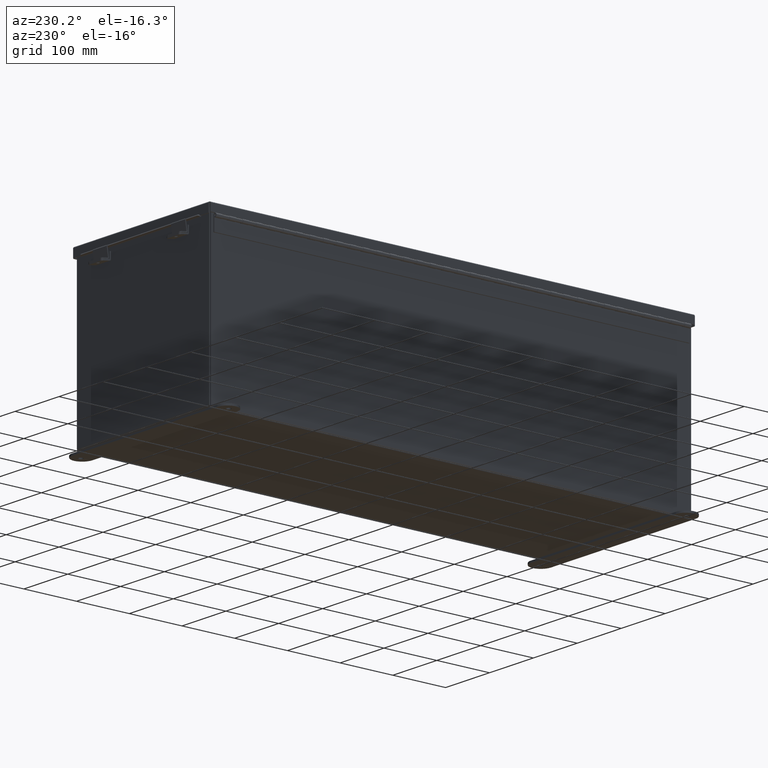
[diagram: clean part render]
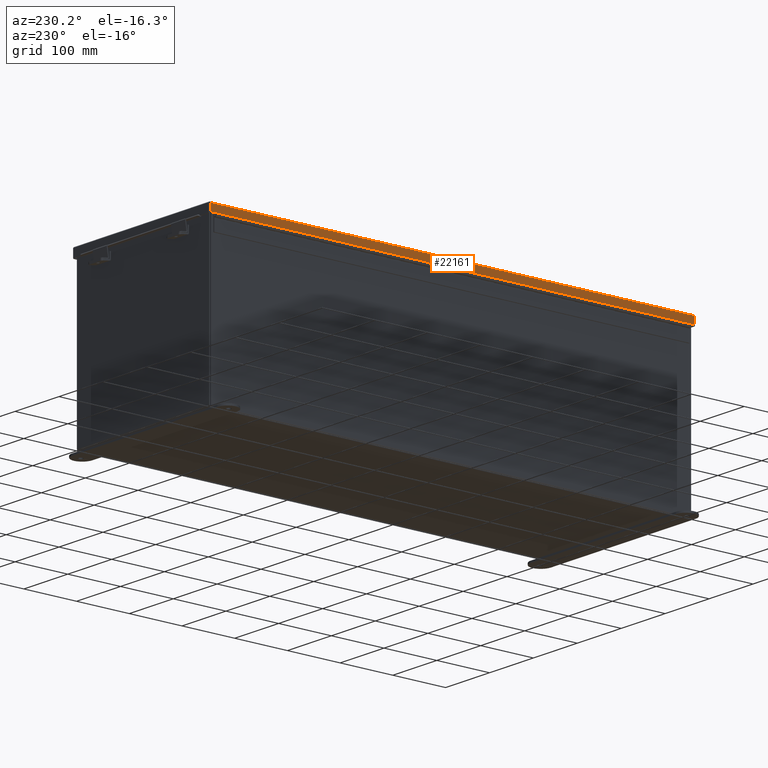
[diagram: same view with one face highlighted and labeled with its STEP entity id]
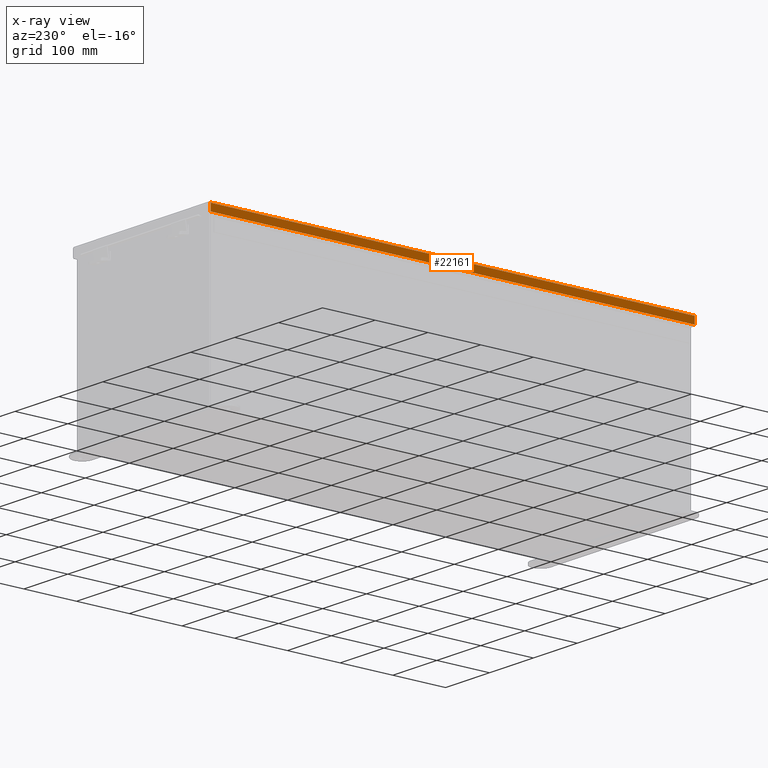
[diagram: x-ray of the same camera — body ghosted, the highlighted face saturated]
A machine part, auxiliary view. The second image highlights one B-rep face of the part: STEP entity #22161.
The next image is the same camera in x-ray: the body ghosted, the highlighted face saturated — about 0% of this face is hidden behind the body in this view.
In plain terms, the highlighted planar face has unit normal (1, -0, 0).
Its self-contained STEP definition (entity closure, byte-faithful):
#55 = CARTESIAN_POINT ( 'NONE',  ( 6.156250000000008900, -4.802076551362963100E-018, -2.622574073917692700E-014 ) ) ;
#149 = EDGE_LOOP ( 'NONE', ( #23312, #1923, #19961, #4399 ) ) ;
#1923 = ORIENTED_EDGE ( 'NONE', *, *, #29372, .T. ) ;
#2082 = VECTOR ( 'NONE', #21693, 39.37007874015748100 ) ;
#2850 = CARTESIAN_POINT ( 'NONE',  ( 6.156250000000008900, 18.07447893218813200, 0.01300000000000010700 ) ) ;
#3408 = CARTESIAN_POINT ( 'NONE',  ( 6.156250000000008900, -18.07447893218813900, 0.01300000000000010700 ) ) ;
#3435 = CARTESIAN_POINT ( 'NONE',  ( 6.156250000000011500, 18.07447893218813200, 0.5502999999999987900 ) ) ;
#4221 = DIRECTION ( 'NONE',  ( 3.971430846686188400E-015, 1.597443333072548900E-029, 1.000000000000000000 ) ) ;
#4399 = ORIENTED_EDGE ( 'NONE', *, *, #28466, .F. ) ;
#5508 = VECTOR ( 'NONE', #21229, 39.37007874015748100 ) ;
#6980 = DIRECTION ( 'NONE',  ( 3.971430846686188400E-015, 1.597443333072548900E-029, 1.000000000000000000 ) ) ;
#9508 = VECTOR ( 'NONE', #15293, 39.37007874015748100 ) ;
#9515 = VERTEX_POINT ( 'NONE', #3435 ) ;
#14293 = CARTESIAN_POINT ( 'NONE',  ( 6.156250000000011500, -4.802076551362963100E-018, 0.5502999999999987900 ) ) ;
#15293 = DIRECTION ( 'NONE',  ( -5.443499362759097600E-030, -1.000000000000000000, -3.009264571335726900E-017 ) ) ;
#16380 = VERTEX_POINT ( 'NONE', #2850 ) ;
#17056 = CARTESIAN_POINT ( 'NONE',  ( 6.156250000000008900, -18.07447893218813900, 0.0000000000000000000 ) ) ;
#17679 = AXIS2_PLACEMENT_3D ( 'NONE', #55, #20781, #6980 ) ;
#18479 = PLANE ( 'NONE',  #17679 ) ;
#18502 = LINE ( 'NONE', #14293, #5508 ) ;
#18970 = EDGE_CURVE ( 'NONE', #16380, #25330, #21040, .T. ) ;
#19325 = EDGE_CURVE ( 'NONE', #9515, #25381, #18502, .T. ) ;
#19961 = ORIENTED_EDGE ( 'NONE', *, *, #19325, .T. ) ;
#20232 = FACE_OUTER_BOUND ( 'NONE', #149, .T. ) ;
#20781 = DIRECTION ( 'NONE',  ( -1.000000000000000000, -5.318666553445647300E-030, 3.971430846686188400E-015 ) ) ;
#21040 = LINE ( 'NONE', #26879, #9508 ) ;
#21229 = DIRECTION ( 'NONE',  ( -5.315277860228140500E-030, -1.000000000000000000, -1.597443333072548900E-029 ) ) ;
#21522 = VECTOR ( 'NONE', #4221, 39.37007874015748100 ) ;
#21693 = DIRECTION ( 'NONE',  ( 3.971430846686188400E-015, 1.597443333072548900E-029, 1.000000000000000000 ) ) ;
#22161 = ADVANCED_FACE ( 'NONE', ( #20232 ), #18479, .F. ) ;
#22239 = LINE ( 'NONE', #27299, #21522 ) ;
#23312 = ORIENTED_EDGE ( 'NONE', *, *, #18970, .F. ) ;
#24371 = CARTESIAN_POINT ( 'NONE',  ( 6.156250000000011500, -18.07447893218813900, 0.5502999999999987900 ) ) ;
#25330 = VERTEX_POINT ( 'NONE', #3408 ) ;
#25381 = VERTEX_POINT ( 'NONE', #24371 ) ;
#26576 = LINE ( 'NONE', #17056, #2082 ) ;
#26879 = CARTESIAN_POINT ( 'NONE',  ( 6.156250000000008900, -18.15625000000000400, 0.01300000000000010700 ) ) ;
#27299 = CARTESIAN_POINT ( 'NONE',  ( 6.156250000000008900, 18.07447893218813200, -2.622574073917692700E-014 ) ) ;
#28466 = EDGE_CURVE ( 'NONE', #25330, #25381, #26576, .T. ) ;
#29372 = EDGE_CURVE ( 'NONE', #16380, #9515, #22239, .T. ) ;